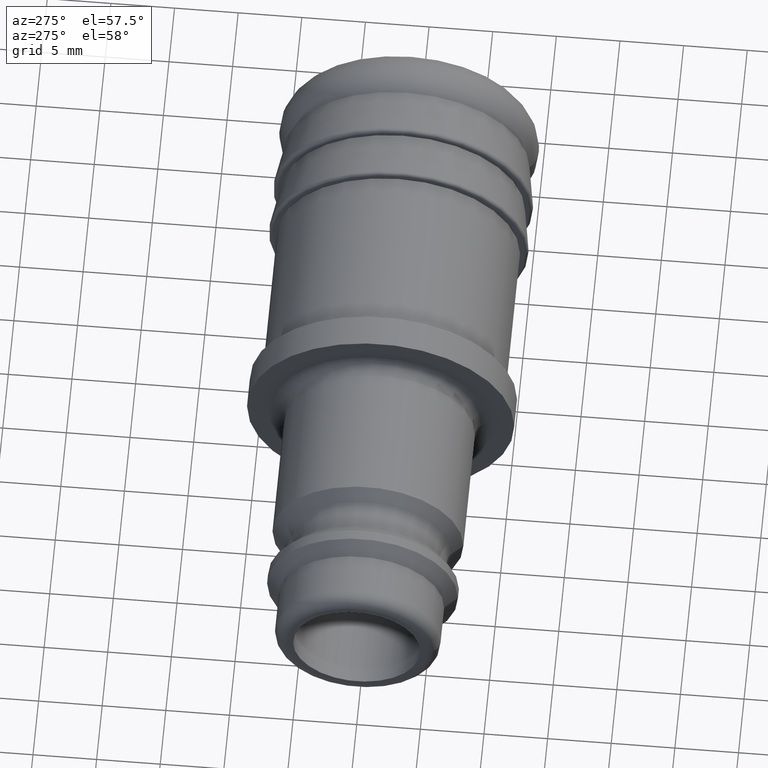
[diagram: clean part render]
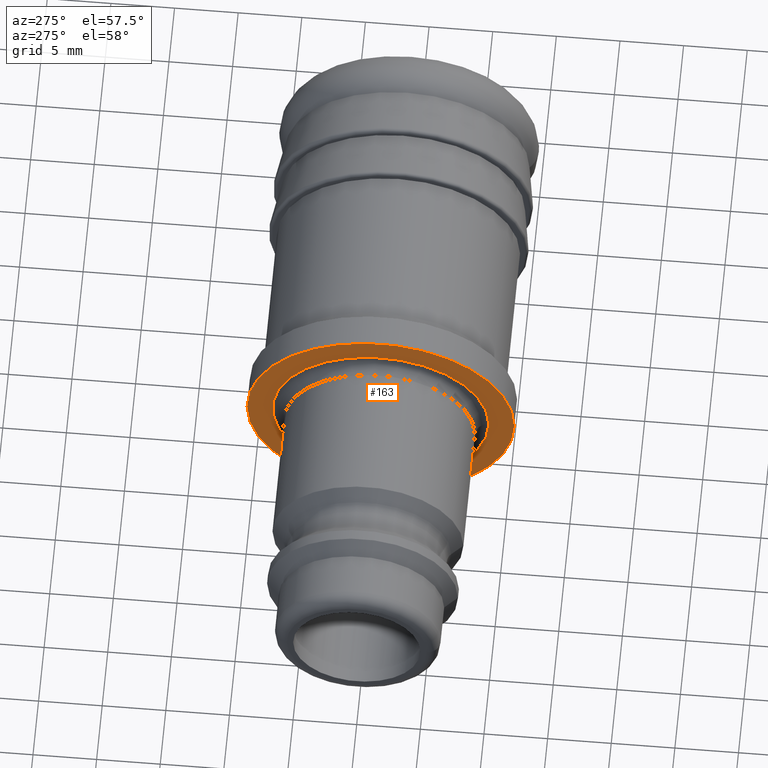
[diagram: same view with one face highlighted and labeled with its STEP entity id]
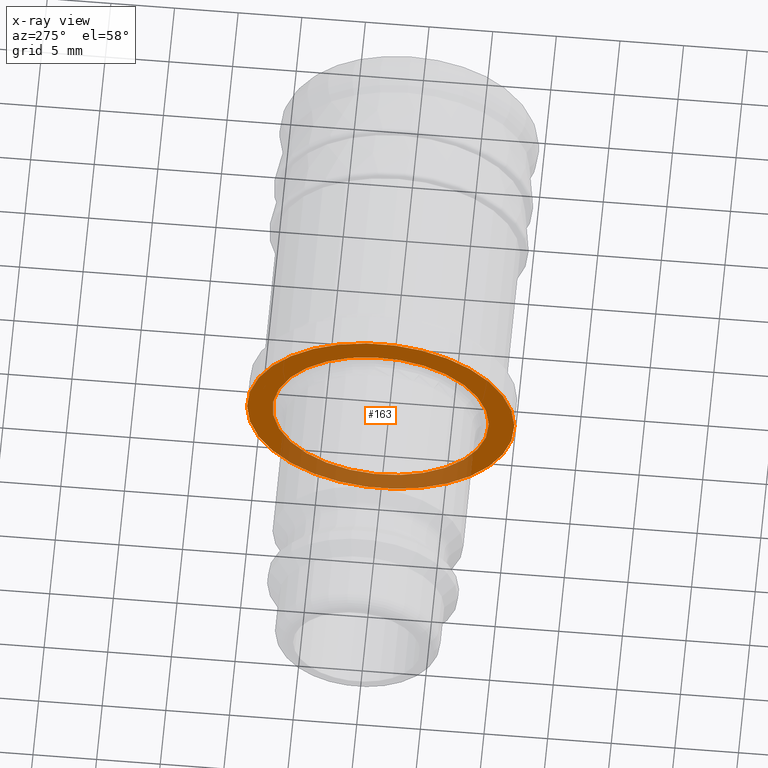
[diagram: x-ray of the same camera — body ghosted, the highlighted face saturated]
A machine part, auxiliary view. The second image highlights one B-rep face of the part: STEP entity #163.
The next image is the same camera in x-ray: the body ghosted, the highlighted face saturated — about 29% of this face is hidden behind the body in this view.
In plain terms, the highlighted planar face has unit normal (-1, 0, 0).
Its self-contained STEP definition (entity closure, byte-faithful):
#121=CARTESIAN_POINT('',(21.499999999999993,-8.499999999999998,0.0));
#122=VERTEX_POINT('',#121);
#123=CARTESIAN_POINT('',(21.499999999999993,0.0,0.0));
#124=DIRECTION('',(-1.0,0.0,0.0));
#125=DIRECTION('',(0.0,1.0,0.0));
#126=AXIS2_PLACEMENT_3D('',#123,#124,#125);
#127=CIRCLE('',#126,8.499999999999998);
#128=EDGE_CURVE('',#122,#122,#127,.T.);
#144=CARTESIAN_POINT('',(21.499999999999993,-9.0,0.0));
#145=DIRECTION('',(-1.0,0.0,0.0));
#146=DIRECTION('',(0.0,0.0,1.0));
#147=AXIS2_PLACEMENT_3D('',#144,#145,#146);
#148=PLANE('',#147);
#149=CARTESIAN_POINT('',(21.5,-10.500000000000004,0.0));
#150=VERTEX_POINT('',#149);
#151=CARTESIAN_POINT('',(21.5,0.0,0.0));
#152=DIRECTION('',(-1.0,0.0,0.0));
#153=DIRECTION('',(0.0,-1.0,0.0));
#154=AXIS2_PLACEMENT_3D('',#151,#152,#153);
#155=CIRCLE('',#154,10.500000000000004);
#156=EDGE_CURVE('',#150,#150,#155,.T.);
#157=ORIENTED_EDGE('',*,*,#156,.T.);
#158=EDGE_LOOP('',(#157));
#159=FACE_OUTER_BOUND('',#158,.T.);
#160=ORIENTED_EDGE('',*,*,#128,.F.);
#161=EDGE_LOOP('',(#160));
#162=FACE_BOUND('',#161,.T.);
#163=ADVANCED_FACE('',(#159,#162),#148,.T.);